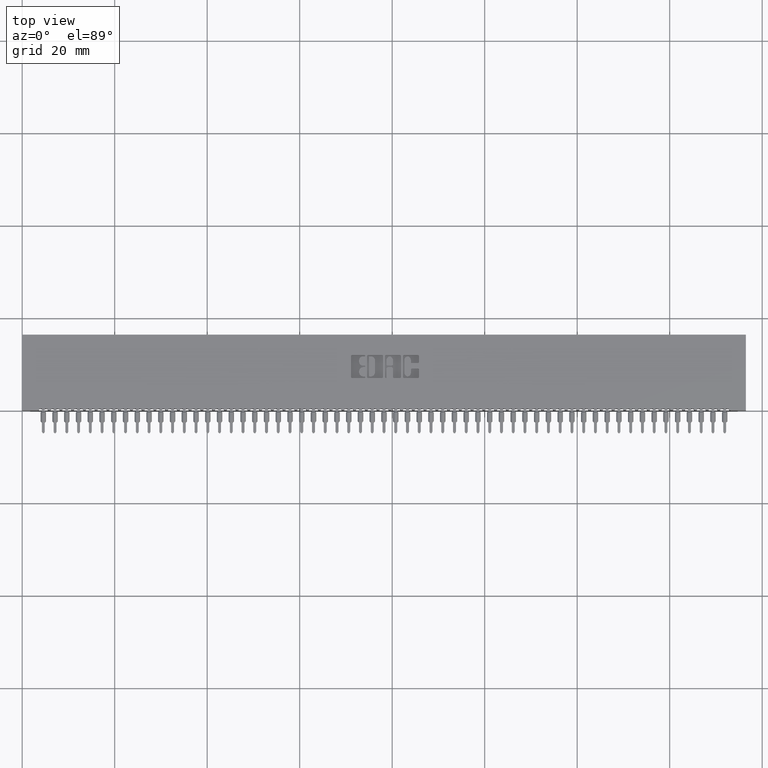
[diagram: clean part render]
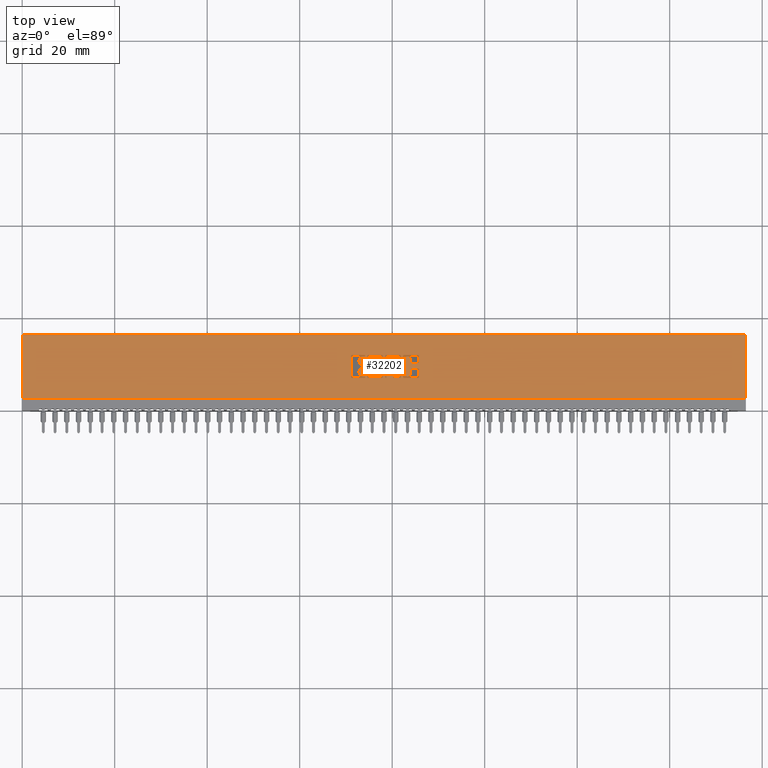
[diagram: same view with one face highlighted and labeled with its STEP entity id]
A machine part, top view. The second image highlights one B-rep face of the part: STEP entity #32202.
In plain terms, the highlighted planar face has unit normal (0, 0, -1).
Its self-contained STEP definition (entity closure, byte-faithful):
#117 = VERTEX_POINT ( 'NONE', #18625 ) ;
#318 = CARTESIAN_POINT ( 'NONE',  ( 0.0000000000000000000, 0.4706567020380511002, 0.0000000000000000000 ) ) ;
#373 = CARTESIAN_POINT ( 'NONE',  ( 3.376678631909971973, 0.0000000000000000000, 0.0000000000000000000 ) ) ;
#583 = DIRECTION ( 'NONE',  ( 1.000000000000000000, 0.0000000000000000000, 0.0000000000000000000 ) ) ;
#667 = DIRECTION ( 'NONE',  ( 1.000000000000000000, 0.0000000000000000000, 0.0000000000000000000 ) ) ;
#1055 = VECTOR ( 'NONE', #64948, 39.37007874015748143 ) ;
#1458 = AXIS2_PLACEMENT_3D ( 'NONE', #76432, #9188, #39145 ) ;
#1475 = VERTEX_POINT ( 'NONE', #10296 ) ;
#1487 = VERTEX_POINT ( 'NONE', #64759 ) ;
#1596 = VECTOR ( 'NONE', #11299, 39.37007874015748143 ) ;
#1693 = CIRCLE ( 'NONE', #51886, 0.03141014465221592805 ) ;
#1822 = VERTEX_POINT ( 'NONE', #93989 ) ;
#2293 = VERTEX_POINT ( 'NONE', #60321 ) ;
#2712 = ORIENTED_EDGE ( 'NONE', *, *, #3062, .F. ) ;
#2826 = CARTESIAN_POINT ( 'NONE',  ( 3.281221239177991578, 0.4306578459575296502, 0.0000000000000000000 ) ) ;
#2991 = CIRCLE ( 'NONE', #1458, 0.009815670203787768208 ) ;
#3062 = EDGE_CURVE ( 'NONE', #66429, #71373, #83611, .T. ) ;
#3135 = CARTESIAN_POINT ( 'NONE',  ( 3.366862961706134083, 0.2841589681657900046, 0.0000000000000000000 ) ) ;
#3400 = AXIS2_PLACEMENT_3D ( 'NONE', #64840, #94777, #93801 ) ;
#3462 = CARTESIAN_POINT ( 'NONE',  ( 0.0000000000000000000, 0.4706567020380327815, 0.0000000000000000000 ) ) ;
#3615 = ORIENTED_EDGE ( 'NONE', *, *, #49081, .F. ) ;
#3682 = EDGE_CURVE ( 'NONE', #51122, #65353, #55002, .T. ) ;
#3814 = CARTESIAN_POINT ( 'NONE',  ( 3.366862961706168278, 0.4706567020380511002, 0.0000000000000000000 ) ) ;
#3877 = CIRCLE ( 'NONE', #14818, 0.009815670203806891800 ) ;
#3944 = VECTOR ( 'NONE', #66401, 39.37007874015748143 ) ;
#4466 = EDGE_LOOP ( 'NONE', ( #75984, #83612, #93717, #7853, #85050, #37700, #41470, #24626, #75411, #26359, #83508, #20855, #22293, #81211, #86012, #5115, #90077, #59328, #6919, #56965 ) ) ;
#4827 = EDGE_CURVE ( 'NONE', #37604, #45171, #96807, .T. ) ;
#5078 = ORIENTED_EDGE ( 'NONE', *, *, #81878, .F. ) ;
#5115 = ORIENTED_EDGE ( 'NONE', *, *, #69731, .F. ) ;
#5160 = DIRECTION ( 'NONE',  ( 1.000000000000000000, 0.0000000000000000000, 0.0000000000000000000 ) ) ;
#5193 = ORIENTED_EDGE ( 'NONE', *, *, #12861, .F. ) ;
#5228 = EDGE_CURVE ( 'NONE', #17423, #47732, #74123, .T. ) ;
#5330 = VECTOR ( 'NONE', #6866, 39.37007874015748143 ) ;
#5519 = CIRCLE ( 'NONE', #17999, 0.03141014465217440571 ) ;
#5992 = VECTOR ( 'NONE', #21881, 39.37007874015748143 ) ;
#6131 = LINE ( 'NONE', #48024, #45384 ) ;
#6162 = DIRECTION ( 'NONE',  ( -0.0000000000000000000, 0.0000000000000000000, 1.000000000000000000 ) ) ;
#6198 = AXIS2_PLACEMENT_3D ( 'NONE', #28317, #82247, #37612 ) ;
#6467 = CARTESIAN_POINT ( 'NONE',  ( 2.913133606535335041, 0.2812142671046480302, 0.0000000000000000000 ) ) ;
#6470 = AXIS2_PLACEMENT_3D ( 'NONE', #57742, #63649, #79812 ) ;
#6513 = LINE ( 'NONE', #36484, #3944 ) ;
#6550 = EDGE_CURVE ( 'NONE', #68316, #1475, #44384, .T. ) ;
#6574 = AXIS2_PLACEMENT_3D ( 'NONE', #2826, #32776, #33758 ) ;
#6655 = CARTESIAN_POINT ( 'NONE',  ( 3.376678631909940442, 0.2841589681657830102, 0.0000000000000000000 ) ) ;
#6708 = DIRECTION ( 'NONE',  ( -1.000000000000000000, 0.0000000000000000000, 0.0000000000000000000 ) ) ;
#6801 = EDGE_CURVE ( 'NONE', #36717, #94022, #78978, .T. ) ;
#6866 = DIRECTION ( 'NONE',  ( -1.000000000000000000, -3.530861605407645268E-14, 0.0000000000000000000 ) ) ;
#6890 = EDGE_CURVE ( 'NONE', #45171, #41560, #19637, .T. ) ;
#6919 = ORIENTED_EDGE ( 'NONE', *, *, #44886, .F. ) ;
#7208 = LINE ( 'NONE', #318, #46180 ) ;
#7305 = CARTESIAN_POINT ( 'NONE',  ( 0.0000000000000000000, 0.6449999999999999067, 0.0000000000000000000 ) ) ;
#7584 = CARTESIAN_POINT ( 'NONE',  ( -0.0000000000000000000, 0.2743432979619832568, 0.0000000000000000000 ) ) ;
#7728 = CARTESIAN_POINT ( 'NONE',  ( 2.913133606535351028, 0.4569147637527357642, 0.0000000000000000000 ) ) ;
#7853 = ORIENTED_EDGE ( 'NONE', *, *, #82415, .F. ) ;
#7878 = EDGE_CURVE ( 'NONE', #35679, #62246, #7208, .T. ) ;
#7964 = VERTEX_POINT ( 'NONE', #52359 ) ;
#8167 = LINE ( 'NONE', #9130, #43204 ) ;
#8301 = LINE ( 'NONE', #15674, #76239 ) ;
#8319 = CARTESIAN_POINT ( 'NONE',  ( 2.899637060005083811, 0.3342188862052006271, 0.0000000000000000000 ) ) ;
#8671 = VECTOR ( 'NONE', #23623, 39.37007874015748143 ) ;
#8793 = CARTESIAN_POINT ( 'NONE',  ( 3.307478156973165717, 0.4112718973050452642, 0.0000000000000000000 ) ) ;
#9116 = CARTESIAN_POINT ( 'NONE',  ( 3.145028815100187725, 0.3656290308573498238, 0.0000000000000000000 ) ) ;
#9121 = EDGE_CURVE ( 'NONE', #2293, #67997, #8167, .T. ) ;
#9130 = CARTESIAN_POINT ( 'NONE',  ( 2.868226915352909412, 0.0000000000000000000, 0.0000000000000000000 ) ) ;
#9188 = DIRECTION ( 'NONE',  ( -0.0000000000000000000, 0.0000000000000000000, 1.000000000000000000 ) ) ;
#9636 = DIRECTION ( 'NONE',  ( -0.0000000000000000000, 0.0000000000000000000, 1.000000000000000000 ) ) ;
#9727 = VERTEX_POINT ( 'NONE', #23719 ) ;
#9791 = CARTESIAN_POINT ( 'NONE',  ( 2.868226915352909412, 0.4255046191005198430, 0.0000000000000000000 ) ) ;
#9797 = LINE ( 'NONE', #84891, #22128 ) ;
#9968 = CARTESIAN_POINT ( 'NONE',  ( 2.935955039759169161, 0.4608410318342101575, 0.0000000000000000000 ) ) ;
#10204 = EDGE_CURVE ( 'NONE', #93646, #78054, #76241, .T. ) ;
#10296 = CARTESIAN_POINT ( 'NONE',  ( 6.160000000000000142, 0.6449999999999999067, 0.0000000000000000000 ) ) ;
#10707 = CIRCLE ( 'NONE', #65621, 0.006870969142648706424 ) ;
#10725 = CARTESIAN_POINT ( 'NONE',  ( 2.913133606535309728, 0.3793709691426839226, 0.0000000000000000000 ) ) ;
#10742 = DIRECTION ( 'NONE',  ( -0.0000000000000000000, 0.0000000000000000000, 1.000000000000000000 ) ) ;
#10772 = AXIS2_PLACEMENT_3D ( 'NONE', #94026, #19922, #25327 ) ;
#10794 = CIRCLE ( 'NONE', #67227, 0.009815670203806891800 ) ;
#10805 = ORIENTED_EDGE ( 'NONE', *, *, #43648, .T. ) ;
#11013 = ORIENTED_EDGE ( 'NONE', *, *, #62140, .F. ) ;
#11045 = CARTESIAN_POINT ( 'NONE',  ( 3.071411288571669118, 0.4608410318342101575, 0.0000000000000000000 ) ) ;
#11299 = DIRECTION ( 'NONE',  ( -1.000000000000000000, 0.0000000000000000000, 0.0000000000000000000 ) ) ;
#11376 = CARTESIAN_POINT ( 'NONE',  ( 3.154844485303984758, 0.2841589681657878952, 0.0000000000000000000 ) ) ;
#11683 = DIRECTION ( 'NONE',  ( -0.0000000000000000000, 0.0000000000000000000, 1.000000000000000000 ) ) ;
#11771 = CARTESIAN_POINT ( 'NONE',  ( 2.945770709963009715, 0.4608410318342101575, 0.0000000000000000000 ) ) ;
#11859 = CARTESIAN_POINT ( 'NONE',  ( 2.945770709962975964, 0.2743432979619832568, 0.0000000000000000000 ) ) ;
#11966 = DIRECTION ( 'NONE',  ( -0.0000000000000000000, 0.0000000000000000000, 1.000000000000000000 ) ) ;
#11998 = CARTESIAN_POINT ( 'NONE',  ( 2.945770709963009715, 0.4706567020380511002, 0.0000000000000000000 ) ) ;
#12223 = CARTESIAN_POINT ( 'NONE',  ( 3.061595618367861871, 0.2743432979619832568, 0.0000000000000000000 ) ) ;
#12423 = CIRCLE ( 'NONE', #6198, 0.009815670203805252486 ) ;
#12622 = AXIS2_PLACEMENT_3D ( 'NONE', #6467, #81086, #13852 ) ;
#12690 = VECTOR ( 'NONE', #59306, 39.37007874015748143 ) ;
#12699 = CARTESIAN_POINT ( 'NONE',  ( 2.913133606535351028, 0.4637857328953863267, 0.0000000000000000000 ) ) ;
#12861 = EDGE_CURVE ( 'NONE', #42547, #66660, #8301, .T. ) ;
#13032 = AXIS2_PLACEMENT_3D ( 'NONE', #17437, #69970, #53776 ) ;
#13107 = CARTESIAN_POINT ( 'NONE',  ( 3.317293827176966747, 0.3538502266127576124, 0.0000000000000000000 ) ) ;
#13314 = ORIENTED_EDGE ( 'NONE', *, *, #10204, .F. ) ;
#13475 = DIRECTION ( 'NONE',  ( 1.000000000000000000, 0.0000000000000000000, 0.0000000000000000000 ) ) ;
#13639 = DIRECTION ( 'NONE',  ( 1.000000000000000000, 0.0000000000000000000, 0.0000000000000000000 ) ) ;
#13685 = VERTEX_POINT ( 'NONE', #89062 ) ;
#13691 = CARTESIAN_POINT ( 'NONE',  ( 6.160000000000000142, 0.1000000000000000056, 0.0000000000000000000 ) ) ;
#13852 = DIRECTION ( 'NONE',  ( 1.000000000000000000, 0.0000000000000000000, 0.0000000000000000000 ) ) ;
#13883 = DIRECTION ( 'NONE',  ( -0.0000000000000000000, 0.0000000000000000000, 1.000000000000000000 ) ) ;
#14020 = DIRECTION ( 'NONE',  ( -0.0000000000000000000, 0.0000000000000000000, 1.000000000000000000 ) ) ;
#14151 = CARTESIAN_POINT ( 'NONE',  ( 2.808842110619918397, 0.2743432979619850332, 0.0000000000000000000 ) ) ;
#14234 = DIRECTION ( 'NONE',  ( -1.000000000000000000, 0.0000000000000000000, 0.0000000000000000000 ) ) ;
#14818 = AXIS2_PLACEMENT_3D ( 'NONE', #36601, #14020, #79796 ) ;
#15012 = VECTOR ( 'NONE', #79927, 39.37007874015748143 ) ;
#15674 = CARTESIAN_POINT ( 'NONE',  ( 0.0000000000000000000, 0.3793709691426839226, 0.0000000000000000000 ) ) ;
#15748 = CARTESIAN_POINT ( 'NONE',  ( 3.088588711428330580, 0.4608410318342101575, 0.0000000000000000000 ) ) ;
#16012 = VECTOR ( 'NONE', #75822, 39.37007874015748143 ) ;
#16055 = DIRECTION ( 'NONE',  ( 1.000000000000000000, 0.0000000000000000000, 0.0000000000000000000 ) ) ;
#16372 = AXIS2_PLACEMENT_3D ( 'NONE', #56681, #80689, #13475 ) ;
#16387 = VECTOR ( 'NONE', #59411, 39.37007874015748143 ) ;
#16451 = CARTESIAN_POINT ( 'NONE',  ( 3.071411288571669118, 0.2841589681657900046, 0.0000000000000000000 ) ) ;
#16487 = AXIS2_PLACEMENT_3D ( 'NONE', #26149, #40401, #86501 ) ;
#16543 = LINE ( 'NONE', #81487, #16387 ) ;
#17423 = VERTEX_POINT ( 'NONE', #9116 ) ;
#17437 = CARTESIAN_POINT ( 'NONE',  ( 2.899637060005109568, 0.3194953808994904221, 0.0000000000000000000 ) ) ;
#17706 = ORIENTED_EDGE ( 'NONE', *, *, #61427, .F. ) ;
#17999 = AXIS2_PLACEMENT_3D ( 'NONE', #32721, #9636, #70030 ) ;
#18271 = VECTOR ( 'NONE', #79008, 39.37007874015748143 ) ;
#18596 = VERTEX_POINT ( 'NONE', #11045 ) ;
#18625 = CARTESIAN_POINT ( 'NONE',  ( 3.317293827176977405, 0.4014562271012336869, 0.0000000000000000000 ) ) ;
#18662 = EDGE_LOOP ( 'NONE', ( #32994, #83765, #92233, #64512, #53164, #13314, #43035, #74332, #29594, #56999, #60919, #45147, #94921, #33833 ) ) ;
#18936 = LINE ( 'NONE', #46931, #74650 ) ;
#18954 = CARTESIAN_POINT ( 'NONE',  ( 3.098404381632127169, 0.4608410318342101575, 0.0000000000000000000 ) ) ;
#19107 = CIRCLE ( 'NONE', #6574, 0.02625691779517394173 ) ;
#19205 = DIRECTION ( 'NONE',  ( -0.0000000000000000000, -1.000000000000000000, -0.0000000000000000000 ) ) ;
#19213 = DIRECTION ( 'NONE',  ( 0.0000000000000000000, -1.000000000000000000, 0.0000000000000000000 ) ) ;
#19267 = CIRCLE ( 'NONE', #49068, 0.009815670203806345362 ) ;
#19292 = VERTEX_POINT ( 'NONE', #75640 ) ;
#19364 = ORIENTED_EDGE ( 'NONE', *, *, #36810, .T. ) ;
#19376 = ORIENTED_EDGE ( 'NONE', *, *, #19813, .F. ) ;
#19422 = DIRECTION ( 'NONE',  ( -0.0000000000000000000, 0.0000000000000000000, 1.000000000000000000 ) ) ;
#19441 = DIRECTION ( 'NONE',  ( -0.0000000000000000000, 0.0000000000000000000, 1.000000000000000000 ) ) ;
#19637 = CIRCLE ( 'NONE', #74518, 0.006870969142663458512 ) ;
#19813 = EDGE_CURVE ( 'NONE', #41560, #42547, #80253, .T. ) ;
#19922 = DIRECTION ( 'NONE',  ( -0.0000000000000000000, 0.0000000000000000000, 1.000000000000000000 ) ) ;
#19938 = CARTESIAN_POINT ( 'NONE',  ( 2.913133606535335041, 0.2812142671046480302, 0.0000000000000000000 ) ) ;
#20855 = ORIENTED_EDGE ( 'NONE', *, *, #77170, .F. ) ;
#21237 = CARTESIAN_POINT ( 'NONE',  ( 2.808842110619921950, 0.2841589681657900046, 0.0000000000000000000 ) ) ;
#21307 = VECTOR ( 'NONE', #88770, 39.37007874015748143 ) ;
#21439 = AXIS2_PLACEMENT_3D ( 'NONE', #11771, #86382, #26516 ) ;
#21857 = DIRECTION ( 'NONE',  ( 1.000000000000000000, 0.0000000000000000000, 0.0000000000000000000 ) ) ;
#21881 = DIRECTION ( 'NONE',  ( 1.000000000000000000, 0.0000000000000000000, 0.0000000000000000000 ) ) ;
#22089 = ORIENTED_EDGE ( 'NONE', *, *, #3682, .F. ) ;
#22121 = VECTOR ( 'NONE', #51452, 39.37007874015748143 ) ;
#22128 = VECTOR ( 'NONE', #76101, 39.37007874015748143 ) ;
#22293 = ORIENTED_EDGE ( 'NONE', *, *, #90941, .F. ) ;
#22294 = CARTESIAN_POINT ( 'NONE',  ( 2.899637060005083811, 0.3656290308573568737, 0.0000000000000000000 ) ) ;
#22438 = DIRECTION ( 'NONE',  ( 1.000000000000000000, 0.0000000000000000000, 0.0000000000000000000 ) ) ;
#22533 = CARTESIAN_POINT ( 'NONE',  ( 2.913133606415388321, 0.3656290308573568737, 0.0000000000000000000 ) ) ;
#23329 = CIRCLE ( 'NONE', #10772, 0.009815670203795964777 ) ;
#23418 = EDGE_CURVE ( 'NONE', #57467, #44181, #68186, .T. ) ;
#23537 = DIRECTION ( 'NONE',  ( -0.0000000000000000000, 0.0000000000000000000, 1.000000000000000000 ) ) ;
#23623 = DIRECTION ( 'NONE',  ( -1.000000000000000000, 0.0000000000000000000, 0.0000000000000000000 ) ) ;
#23719 = CARTESIAN_POINT ( 'NONE',  ( 3.214229290037013520, 0.4706567020380066912, 0.0000000000000000000 ) ) ;
#24146 = ORIENTED_EDGE ( 'NONE', *, *, #71435, .F. ) ;
#24449 = CIRCLE ( 'NONE', #37040, 0.009815670203840221042 ) ;
#24585 = CARTESIAN_POINT ( 'NONE',  ( 2.913133606415414079, 0.2743432979619857548, 0.0000000000000000000 ) ) ;
#24626 = ORIENTED_EDGE ( 'NONE', *, *, #69711, .F. ) ;
#24842 = EDGE_CURVE ( 'NONE', #89966, #117, #83865, .T. ) ;
#24871 = FACE_BOUND ( 'NONE', #4466, .T. ) ;
#25033 = CARTESIAN_POINT ( 'NONE',  ( 2.899637060005125111, 0.4569147637527357642, 0.0000000000000000000 ) ) ;
#25327 = DIRECTION ( 'NONE',  ( 1.000000000000000000, 0.0000000000000000000, 0.0000000000000000000 ) ) ;
#25406 = VERTEX_POINT ( 'NONE', #46087 ) ;
#25473 = CARTESIAN_POINT ( 'NONE',  ( 3.366862961706153179, 0.3440345564089705155, 0.0000000000000000000 ) ) ;
#25574 = CIRCLE ( 'NONE', #77484, 0.009815670203787221770 ) ;
#25987 = EDGE_CURVE ( 'NONE', #63485, #63763, #18936, .T. ) ;
#26149 = CARTESIAN_POINT ( 'NONE',  ( 2.913133606535351028, 0.4637857328953863267, 0.0000000000000000000 ) ) ;
#26359 = ORIENTED_EDGE ( 'NONE', *, *, #32039, .F. ) ;
#26430 = DIRECTION ( 'NONE',  ( 1.000000000000000000, 0.0000000000000000000, 0.0000000000000000000 ) ) ;
#26516 = DIRECTION ( 'NONE',  ( 1.000000000000000000, 0.0000000000000000000, 0.0000000000000000000 ) ) ;
#26592 = EDGE_CURVE ( 'NONE', #93646, #37970, #41922, .T. ) ;
#27151 = EDGE_CURVE ( 'NONE', #76055, #36717, #76412, .T. ) ;
#27168 = DIRECTION ( 'NONE',  ( 0.0000000000000000000, -1.000000000000000000, 0.0000000000000000000 ) ) ;
#27489 = LINE ( 'NONE', #57436, #18271 ) ;
#27512 = CARTESIAN_POINT ( 'NONE',  ( 0.0000000000000000000, 0.4706567020380511002, 0.0000000000000000000 ) ) ;
#27998 = CARTESIAN_POINT ( 'NONE',  ( 3.112146319917449944, 0.3656290308573487136, 0.0000000000000000000 ) ) ;
#28317 = CARTESIAN_POINT ( 'NONE',  ( 3.366862961706166502, 0.4112718973050387139, 0.0000000000000000000 ) ) ;
#28522 = CARTESIAN_POINT ( 'NONE',  ( 3.251038053301265052, 0.2743432979619832568, 0.0000000000000000000 ) ) ;
#28623 = VERTEX_POINT ( 'NONE', #79940 ) ;
#28645 = EDGE_CURVE ( 'NONE', #94022, #51122, #10707, .T. ) ;
#28916 = VERTEX_POINT ( 'NONE', #47966 ) ;
#29352 = EDGE_CURVE ( 'NONE', #41637, #88157, #36831, .T. ) ;
#29384 = VERTEX_POINT ( 'NONE', #65308 ) ;
#29594 = ORIENTED_EDGE ( 'NONE', *, *, #5228, .T. ) ;
#29665 = CARTESIAN_POINT ( 'NONE',  ( 3.145028815100187725, 0.3558133606535528459, 0.0000000000000000000 ) ) ;
#29715 = VERTEX_POINT ( 'NONE', #77705 ) ;
#29739 = LINE ( 'NONE', #36632, #5992 ) ;
#29753 = VERTEX_POINT ( 'NONE', #94373 ) ;
#29829 = CARTESIAN_POINT ( 'NONE',  ( -0.0000000000000000000, 0.2743432979619832568, 0.0000000000000000000 ) ) ;
#29842 = LINE ( 'NONE', #373, #12690 ) ;
#30064 = CARTESIAN_POINT ( 'NONE',  ( 3.164660155507785788, 0.2743432979619847001, 0.0000000000000000000 ) ) ;
#30142 = AXIS2_PLACEMENT_3D ( 'NONE', #44678, #74616, #59880 ) ;
#30624 = EDGE_CURVE ( 'NONE', #29715, #9727, #38955, .T. ) ;
#30996 = EDGE_CURVE ( 'NONE', #28623, #73219, #23329, .T. ) ;
#31054 = ORIENTED_EDGE ( 'NONE', *, *, #86797, .F. ) ;
#31558 = VECTOR ( 'NONE', #95610, 39.37007874015748143 ) ;
#31752 = CARTESIAN_POINT ( 'NONE',  ( -0.0000000000000000000, 0.4569147637527357642, 0.0000000000000000000 ) ) ;
#32039 = EDGE_CURVE ( 'NONE', #81883, #50749, #35777, .T. ) ;
#32202 = ADVANCED_FACE ( 'NONE', ( #24871, #70031, #92578, #46484, #93062 ), #33705, .F. ) ;
#32297 = EDGE_CURVE ( 'NONE', #7964, #96330, #64092, .T. ) ;
#32339 = VECTOR ( 'NONE', #94304, 39.37007874015748143 ) ;
#32668 = VERTEX_POINT ( 'NONE', #41938 ) ;
#32721 = CARTESIAN_POINT ( 'NONE',  ( 2.899637060005083811, 0.4107811137948584324, 0.0000000000000000000 ) ) ;
#32776 = DIRECTION ( 'NONE',  ( -0.0000000000000000000, 0.0000000000000000000, 1.000000000000000000 ) ) ;
#32994 = ORIENTED_EDGE ( 'NONE', *, *, #36298, .T. ) ;
#33068 = LINE ( 'NONE', #63017, #53596 ) ;
#33146 = VERTEX_POINT ( 'NONE', #14151 ) ;
#33188 = CIRCLE ( 'NONE', #3400, 0.009815670203806891800 ) ;
#33272 = EDGE_CURVE ( 'NONE', #29715, #73219, #6131, .T. ) ;
#33627 = CARTESIAN_POINT ( 'NONE',  ( 3.254964321382818326, 0.3143421540424530258, 0.0000000000000000000 ) ) ;
#33705 = PLANE ( 'NONE',  #6470 ) ;
#33758 = DIRECTION ( 'NONE',  ( 1.000000000000000000, 0.0000000000000000000, 0.0000000000000000000 ) ) ;
#33801 = CARTESIAN_POINT ( 'NONE',  ( 3.214229290037011300, 0.4608410318342104350, 0.0000000000000000000 ) ) ;
#33833 = ORIENTED_EDGE ( 'NONE', *, *, #32297, .F. ) ;
#34069 = CARTESIAN_POINT ( 'NONE',  ( 3.154844485303984758, 0.0000000000000000000, 0.0000000000000000000 ) ) ;
#34230 = ORIENTED_EDGE ( 'NONE', *, *, #29352, .F. ) ;
#34450 = CARTESIAN_POINT ( 'NONE',  ( 2.868226915352927175, 0.0000000000000000000, 0.0000000000000000000 ) ) ;
#34784 = CARTESIAN_POINT ( 'NONE',  ( 3.376678631909940442, 0.0000000000000000000, 0.0000000000000000000 ) ) ;
#34856 = CIRCLE ( 'NONE', #30142, 0.009815670203803066735 ) ;
#35355 = AXIS2_PLACEMENT_3D ( 'NONE', #8319, #23537, #59892 ) ;
#35442 = CARTESIAN_POINT ( 'NONE',  ( 0.0000000000000000000, 0.6449999999999999067, 0.0000000000000000000 ) ) ;
#35600 = CARTESIAN_POINT ( 'NONE',  ( 3.254964321382818326, 0.4306578459575296502, 0.0000000000000000000 ) ) ;
#35604 = DIRECTION ( 'NONE',  ( 1.000000000000000000, 0.0000000000000000000, 0.0000000000000000000 ) ) ;
#35672 = ORIENTED_EDGE ( 'NONE', *, *, #27151, .F. ) ;
#35679 = VERTEX_POINT ( 'NONE', #71928 ) ;
#35777 = LINE ( 'NONE', #65697, #31558 ) ;
#35801 = DIRECTION ( 'NONE',  ( 1.000000000000000000, 0.0000000000000000000, 0.0000000000000000000 ) ) ;
#35999 = CIRCLE ( 'NONE', #61046, 0.006870969142662365636 ) ;
#36132 = CARTESIAN_POINT ( 'NONE',  ( 3.366862961706156288, 0.3538502266127576124, 0.0000000000000000000 ) ) ;
#36298 = EDGE_CURVE ( 'NONE', #7964, #9727, #58050, .T. ) ;
#36394 = DIRECTION ( 'NONE',  ( -0.0000000000000000000, 0.0000000000000000000, 1.000000000000000000 ) ) ;
#36484 = CARTESIAN_POINT ( 'NONE',  ( 3.307478156973165717, 0.0000000000000000000, 0.0000000000000000000 ) ) ;
#36601 = CARTESIAN_POINT ( 'NONE',  ( 2.945770709962975964, 0.2841589681657900046, 0.0000000000000000000 ) ) ;
#36632 = CARTESIAN_POINT ( 'NONE',  ( -0.0000000000000000000, 0.4014562271012336869, 0.0000000000000000000 ) ) ;
#36675 = ORIENTED_EDGE ( 'NONE', *, *, #82269, .F. ) ;
#36717 = VERTEX_POINT ( 'NONE', #7728 ) ;
#36810 = EDGE_CURVE ( 'NONE', #76055, #67997, #1693, .T. ) ;
#36817 = CARTESIAN_POINT ( 'NONE',  ( 2.913133606535309728, 0.3725000000000204259, 0.0000000000000000000 ) ) ;
#36831 = LINE ( 'NONE', #94738, #59435 ) ;
#37040 = AXIS2_PLACEMENT_3D ( 'NONE', #44341, #37471, #81618 ) ;
#37471 = DIRECTION ( 'NONE',  ( -0.0000000000000000000, 0.0000000000000000000, 1.000000000000000000 ) ) ;
#37604 = VERTEX_POINT ( 'NONE', #22294 ) ;
#37612 = DIRECTION ( 'NONE',  ( 1.000000000000000000, 0.0000000000000000000, 0.0000000000000000000 ) ) ;
#37700 = ORIENTED_EDGE ( 'NONE', *, *, #25987, .F. ) ;
#37862 = VERTEX_POINT ( 'NONE', #72762 ) ;
#37936 = ORIENTED_EDGE ( 'NONE', *, *, #28645, .F. ) ;
#37952 = AXIS2_PLACEMENT_3D ( 'NONE', #36817, #81452, #89772 ) ;
#37970 = VERTEX_POINT ( 'NONE', #45717 ) ;
#38513 = ORIENTED_EDGE ( 'NONE', *, *, #9121, .F. ) ;
#38955 = CIRCLE ( 'NONE', #56201, 0.009815670203795418339 ) ;
#39039 = DIRECTION ( 'NONE',  ( 1.000000000000000000, 0.0000000000000000000, 0.0000000000000000000 ) ) ;
#39145 = DIRECTION ( 'NONE',  ( 1.000000000000000000, 0.0000000000000000000, 0.0000000000000000000 ) ) ;
#39240 = DIRECTION ( 'NONE',  ( -0.0000000000000000000, 0.0000000000000000000, 1.000000000000000000 ) ) ;
#40029 = AXIS2_PLACEMENT_3D ( 'NONE', #86670, #19422, #5160 ) ;
#40050 = EDGE_CURVE ( 'NONE', #87555, #61394, #83285, .T. ) ;
#40079 = DIRECTION ( 'NONE',  ( 0.0000000000000000000, 1.000000000000000000, -0.0000000000000000000 ) ) ;
#40401 = DIRECTION ( 'NONE',  ( -0.0000000000000000000, 0.0000000000000000000, 1.000000000000000000 ) ) ;
#40706 = DIRECTION ( 'NONE',  ( 1.000000000000000000, 0.0000000000000000000, 0.0000000000000000000 ) ) ;
#40961 = EDGE_CURVE ( 'NONE', #37862, #81883, #25574, .T. ) ;
#41379 = VERTEX_POINT ( 'NONE', #49978 ) ;
#41470 = ORIENTED_EDGE ( 'NONE', *, *, #54357, .T. ) ;
#41560 = VERTEX_POINT ( 'NONE', #90525 ) ;
#41637 = VERTEX_POINT ( 'NONE', #9968 ) ;
#41822 = LINE ( 'NONE', #35442, #62118 ) ;
#41922 = LINE ( 'NONE', #34069, #1055 ) ;
#41938 = CARTESIAN_POINT ( 'NONE',  ( 0.0000000000000000000, 0.1000000000000000056, 0.0000000000000000000 ) ) ;
#42096 = CARTESIAN_POINT ( 'NONE',  ( 2.920004575677999981, 0.4637857328953863267, 0.0000000000000000000 ) ) ;
#42547 = VERTEX_POINT ( 'NONE', #10725 ) ;
#43035 = ORIENTED_EDGE ( 'NONE', *, *, #26592, .T. ) ;
#43135 = LINE ( 'NONE', #64724, #15012 ) ;
#43161 = VECTOR ( 'NONE', #27168, 39.37007874015748143 ) ;
#43204 = VECTOR ( 'NONE', #53794, 39.37007874015748143 ) ;
#43648 = EDGE_CURVE ( 'NONE', #37604, #89489, #94878, .T. ) ;
#44002 = EDGE_CURVE ( 'NONE', #1475, #28916, #43135, .T. ) ;
#44157 = AXIS2_PLACEMENT_3D ( 'NONE', #21237, #13883, #80138 ) ;
#44181 = VERTEX_POINT ( 'NONE', #91621 ) ;
#44341 = CARTESIAN_POINT ( 'NONE',  ( 3.366862961706131863, 0.4608410318342109901, 0.0000000000000000000 ) ) ;
#44384 = LINE ( 'NONE', #51755, #71289 ) ;
#44678 = CARTESIAN_POINT ( 'NONE',  ( 3.112146319917449944, 0.3558133606535456295, 0.0000000000000000000 ) ) ;
#44886 = EDGE_CURVE ( 'NONE', #29753, #92944, #24449, .T. ) ;
#44955 = VERTEX_POINT ( 'NONE', #67859 ) ;
#45000 = VECTOR ( 'NONE', #60090, 39.37007874015748143 ) ;
#45147 = ORIENTED_EDGE ( 'NONE', *, *, #23418, .F. ) ;
#45171 = VERTEX_POINT ( 'NONE', #22533 ) ;
#45384 = VECTOR ( 'NONE', #77946, 39.37007874015748143 ) ;
#45717 = CARTESIAN_POINT ( 'NONE',  ( 3.154844485303984758, 0.3558133606535435201, 0.0000000000000000000 ) ) ;
#45764 = AXIS2_PLACEMENT_3D ( 'NONE', #46117, #39240, #53477 ) ;
#45799 = EDGE_CURVE ( 'NONE', #37970, #17423, #87323, .T. ) ;
#45823 = ORIENTED_EDGE ( 'NONE', *, *, #76009, .F. ) ;
#46087 = CARTESIAN_POINT ( 'NONE',  ( 2.799026440416115147, 0.2841589681657900046, 0.0000000000000000000 ) ) ;
#46117 = CARTESIAN_POINT ( 'NONE',  ( 3.061595618367827676, 0.4608410318342100465, 0.0000000000000000000 ) ) ;
#46151 = ORIENTED_EDGE ( 'NONE', *, *, #65138, .F. ) ;
#46170 = EDGE_CURVE ( 'NONE', #19292, #94907, #58110, .T. ) ;
#46180 = VECTOR ( 'NONE', #6708, 39.37007874015748143 ) ;
#46398 = CARTESIAN_POINT ( 'NONE',  ( 2.808842110619937937, 0.4608410318342101575, 0.0000000000000000000 ) ) ;
#46484 = FACE_BOUND ( 'NONE', #75294, .T. ) ;
#46571 = DIRECTION ( 'NONE',  ( -0.0000000000000000000, 0.0000000000000000000, 1.000000000000000000 ) ) ;
#46931 = CARTESIAN_POINT ( 'NONE',  ( 3.254964321382818326, 0.0000000000000000000, 0.0000000000000000000 ) ) ;
#47302 = DIRECTION ( 'NONE',  ( 1.000000000000000000, 7.203446383881635636E-15, 0.0000000000000000000 ) ) ;
#47645 = EDGE_CURVE ( 'NONE', #92944, #44955, #94249, .T. ) ;
#47732 = VERTEX_POINT ( 'NONE', #27998 ) ;
#47738 = CARTESIAN_POINT ( 'NONE',  ( 2.913133606535309728, 0.3725000000000204259, 0.0000000000000000000 ) ) ;
#47966 = CARTESIAN_POINT ( 'NONE',  ( 6.160000000000000142, 0.1000000000000000056, 0.0000000000000000000 ) ) ;
#48024 = CARTESIAN_POINT ( 'NONE',  ( 3.224044960240806112, 0.0000000000000000000, 0.0000000000000000000 ) ) ;
#48166 = ORIENTED_EDGE ( 'NONE', *, *, #4827, .F. ) ;
#48880 = VERTEX_POINT ( 'NONE', #55638 ) ;
#49068 = AXIS2_PLACEMENT_3D ( 'NONE', #3135, #11966, #86091 ) ;
#49081 = EDGE_CURVE ( 'NONE', #25406, #33146, #66101, .T. ) ;
#49978 = CARTESIAN_POINT ( 'NONE',  ( 3.307478156973179040, 0.3440345564089687391, 0.0000000000000000000 ) ) ;
#50020 = AXIS2_PLACEMENT_3D ( 'NONE', #18954, #19441, #79334 ) ;
#50239 = CARTESIAN_POINT ( 'NONE',  ( 2.799026440416115147, 0.0000000000000000000, 0.0000000000000000000 ) ) ;
#50594 = DIRECTION ( 'NONE',  ( 0.0000000000000000000, -1.000000000000000000, 0.0000000000000000000 ) ) ;
#50749 = VERTEX_POINT ( 'NONE', #13107 ) ;
#50856 = EDGE_CURVE ( 'NONE', #1487, #48880, #77259, .T. ) ;
#51122 = VERTEX_POINT ( 'NONE', #89530 ) ;
#51351 = ORIENTED_EDGE ( 'NONE', *, *, #83917, .T. ) ;
#51423 = CARTESIAN_POINT ( 'NONE',  ( 3.241222383097458248, 0.2841589681657900046, 0.0000000000000000000 ) ) ;
#51452 = DIRECTION ( 'NONE',  ( 0.0000000000000000000, 1.000000000000000000, -0.0000000000000000000 ) ) ;
#51571 = ORIENTED_EDGE ( 'NONE', *, *, #44002, .F. ) ;
#51577 = CARTESIAN_POINT ( 'NONE',  ( -1.290985506876231629E-14, 0.3656290308572388015, 0.0000000000000000000 ) ) ;
#51733 = VERTEX_POINT ( 'NONE', #24585 ) ;
#51755 = CARTESIAN_POINT ( 'NONE',  ( 0.0000000000000000000, 0.6449999999999999067, 0.0000000000000000000 ) ) ;
#51886 = AXIS2_PLACEMENT_3D ( 'NONE', #84345, #46571, #83384 ) ;
#52151 = CARTESIAN_POINT ( 'NONE',  ( -0.0000000000000000000, 0.3656290308573568737, 0.0000000000000000000 ) ) ;
#52306 = LINE ( 'NONE', #82225, #16012 ) ;
#52359 = CARTESIAN_POINT ( 'NONE',  ( 3.098404381632127169, 0.4706567020380066912, 0.0000000000000000000 ) ) ;
#52921 = VECTOR ( 'NONE', #16055, 39.37007874015748143 ) ;
#53164 = ORIENTED_EDGE ( 'NONE', *, *, #95661, .T. ) ;
#53271 = CIRCLE ( 'NONE', #68959, 0.009815670203822736764 ) ;
#53477 = DIRECTION ( 'NONE',  ( 1.000000000000000000, 0.0000000000000000000, 0.0000000000000000000 ) ) ;
#53596 = VECTOR ( 'NONE', #47302, 39.37007874015748143 ) ;
#53776 = DIRECTION ( 'NONE',  ( 1.000000000000000000, 0.0000000000000000000, 0.0000000000000000000 ) ) ;
#53794 = DIRECTION ( 'NONE',  ( 0.0000000000000000000, 1.000000000000000000, -0.0000000000000000000 ) ) ;
#54357 = EDGE_CURVE ( 'NONE', #63485, #1822, #83772, .T. ) ;
#55002 = LINE ( 'NONE', #3462, #8671 ) ;
#55131 = CIRCLE ( 'NONE', #63004, 0.009815670203841313918 ) ;
#55638 = CARTESIAN_POINT ( 'NONE',  ( 2.899637060005109568, 0.2880852362473086403, 0.0000000000000000000 ) ) ;
#56201 = AXIS2_PLACEMENT_3D ( 'NONE', #33801, #11683, #26430 ) ;
#56347 = EDGE_CURVE ( 'NONE', #94907, #48880, #27489, .T. ) ;
#56362 = EDGE_CURVE ( 'NONE', #62246, #41637, #91893, .T. ) ;
#56681 = CARTESIAN_POINT ( 'NONE',  ( 3.281221239177998239, 0.3143421540424530258, 0.0000000000000000000 ) ) ;
#56821 = VERTEX_POINT ( 'NONE', #51423 ) ;
#56965 = ORIENTED_EDGE ( 'NONE', *, *, #65372, .F. ) ;
#56999 = ORIENTED_EDGE ( 'NONE', *, *, #89921, .T. ) ;
#57436 = CARTESIAN_POINT ( 'NONE',  ( -3.425805886172827097E-14, 0.2880852362469638606, 0.0000000000000000000 ) ) ;
#57467 = VERTEX_POINT ( 'NONE', #77863 ) ;
#57742 = CARTESIAN_POINT ( 'NONE',  ( 0.0000000000000000000, 0.6449999999999999067, 0.0000000000000000000 ) ) ;
#57869 = CARTESIAN_POINT ( 'NONE',  ( 3.366862961706134083, 0.2743432979619832568, 0.0000000000000000000 ) ) ;
#58050 = LINE ( 'NONE', #59967, #78413 ) ;
#58110 = CIRCLE ( 'NONE', #12622, 0.006870969142662365636 ) ;
#58256 = ORIENTED_EDGE ( 'NONE', *, *, #50856, .T. ) ;
#58611 = VECTOR ( 'NONE', #22438, 39.37007874015748143 ) ;
#58753 = EDGE_CURVE ( 'NONE', #117, #64204, #29739, .T. ) ;
#59306 = DIRECTION ( 'NONE',  ( 0.0000000000000000000, 1.000000000000000000, -0.0000000000000000000 ) ) ;
#59328 = ORIENTED_EDGE ( 'NONE', *, *, #47645, .F. ) ;
#59411 = DIRECTION ( 'NONE',  ( 0.0000000000000000000, -1.000000000000000000, 0.0000000000000000000 ) ) ;
#59435 = VECTOR ( 'NONE', #89321, 39.37007874015748143 ) ;
#59880 = DIRECTION ( 'NONE',  ( 1.000000000000000000, 0.0000000000000000000, 0.0000000000000000000 ) ) ;
#59892 = DIRECTION ( 'NONE',  ( 1.000000000000000000, 0.0000000000000000000, 0.0000000000000000000 ) ) ;
#59967 = CARTESIAN_POINT ( 'NONE',  ( -0.0000000000000000000, 0.4706567020380066912, 0.0000000000000000000 ) ) ;
#60090 = DIRECTION ( 'NONE',  ( 1.000000000000000000, 0.0000000000000000000, 0.0000000000000000000 ) ) ;
#60250 = CARTESIAN_POINT ( 'NONE',  ( 2.808842110619937937, 0.4706567020380327815, 0.0000000000000000000 ) ) ;
#60321 = CARTESIAN_POINT ( 'NONE',  ( 2.868226915352909412, 0.4107811137948584324, 0.0000000000000000000 ) ) ;
#60919 = ORIENTED_EDGE ( 'NONE', *, *, #92644, .T. ) ;
#61046 = AXIS2_PLACEMENT_3D ( 'NONE', #19938, #6162, #21857 ) ;
#61394 = VERTEX_POINT ( 'NONE', #57869 ) ;
#61427 = EDGE_CURVE ( 'NONE', #71373, #67137, #10794, .T. ) ;
#61999 = EDGE_CURVE ( 'NONE', #64204, #71911, #12423, .T. ) ;
#62118 = VECTOR ( 'NONE', #19205, 39.37007874015748143 ) ;
#62140 = EDGE_CURVE ( 'NONE', #65353, #29384, #53271, .T. ) ;
#62194 = ORIENTED_EDGE ( 'NONE', *, *, #6890, .F. ) ;
#62198 = ORIENTED_EDGE ( 'NONE', *, *, #83946, .F. ) ;
#62246 = VERTEX_POINT ( 'NONE', #11998 ) ;
#63004 = AXIS2_PLACEMENT_3D ( 'NONE', #78607, #36394, #81515 ) ;
#63017 = CARTESIAN_POINT ( 'NONE',  ( -1.976217237646277391E-15, 0.2743432979619647716, 0.0000000000000000000 ) ) ;
#63287 = CARTESIAN_POINT ( 'NONE',  ( 3.061595618367861871, 0.2841589681657900046, 0.0000000000000000000 ) ) ;
#63485 = VERTEX_POINT ( 'NONE', #33627 ) ;
#63585 = LINE ( 'NONE', #85149, #88709 ) ;
#63649 = DIRECTION ( 'NONE',  ( 0.0000000000000000000, 0.0000000000000000000, -1.000000000000000000 ) ) ;
#63763 = VERTEX_POINT ( 'NONE', #35600 ) ;
#64092 = CIRCLE ( 'NONE', #50020, 0.009815670203796511215 ) ;
#64204 = VERTEX_POINT ( 'NONE', #81075 ) ;
#64512 = ORIENTED_EDGE ( 'NONE', *, *, #30996, .F. ) ;
#64724 = CARTESIAN_POINT ( 'NONE',  ( 6.160000000000000142, 0.6449999999999999067, 0.0000000000000000000 ) ) ;
#64759 = CARTESIAN_POINT ( 'NONE',  ( 2.868226915352927175, 0.3194953808994904221, 0.0000000000000000000 ) ) ;
#64840 = CARTESIAN_POINT ( 'NONE',  ( 3.251038053301265052, 0.2841589681657900046, 0.0000000000000000000 ) ) ;
#64948 = DIRECTION ( 'NONE',  ( 0.0000000000000000000, 1.000000000000000000, -0.0000000000000000000 ) ) ;
#65138 = EDGE_CURVE ( 'NONE', #18596, #35679, #88095, .T. ) ;
#65162 = DIRECTION ( 'NONE',  ( -0.0000000000000000000, 0.0000000000000000000, 1.000000000000000000 ) ) ;
#65210 = ORIENTED_EDGE ( 'NONE', *, *, #6550, .F. ) ;
#65308 = CARTESIAN_POINT ( 'NONE',  ( 2.799026440416115147, 0.4608410318342101575, 0.0000000000000000000 ) ) ;
#65353 = VERTEX_POINT ( 'NONE', #60250 ) ;
#65372 = EDGE_CURVE ( 'NONE', #71911, #29753, #29842, .T. ) ;
#65621 = AXIS2_PLACEMENT_3D ( 'NONE', #12699, #78967, #35801 ) ;
#65697 = CARTESIAN_POINT ( 'NONE',  ( 0.0000000000000000000, 0.3538502266127576124, 0.0000000000000000000 ) ) ;
#66101 = CIRCLE ( 'NONE', #44157, 0.009815670203805798924 ) ;
#66401 = DIRECTION ( 'NONE',  ( 0.0000000000000000000, -1.000000000000000000, 0.0000000000000000000 ) ) ;
#66429 = VERTEX_POINT ( 'NONE', #11859 ) ;
#66545 = EDGE_CURVE ( 'NONE', #44955, #13685, #55131, .T. ) ;
#66660 = VERTEX_POINT ( 'NONE', #73681 ) ;
#67137 = VERTEX_POINT ( 'NONE', #16451 ) ;
#67227 = AXIS2_PLACEMENT_3D ( 'NONE', #63287, #93205, #93706 ) ;
#67859 = CARTESIAN_POINT ( 'NONE',  ( 3.251038053301299247, 0.4706567020380511002, 0.0000000000000000000 ) ) ;
#67910 = DIRECTION ( 'NONE',  ( -0.0000000000000000000, 0.0000000000000000000, 1.000000000000000000 ) ) ;
#67997 = VERTEX_POINT ( 'NONE', #9791 ) ;
#68068 = LINE ( 'NONE', #13691, #21307 ) ;
#68186 = CIRCLE ( 'NONE', #82347, 0.006870969142657995000 ) ;
#68316 = VERTEX_POINT ( 'NONE', #7305 ) ;
#68959 = AXIS2_PLACEMENT_3D ( 'NONE', #46398, #69434, #39039 ) ;
#69434 = DIRECTION ( 'NONE',  ( -0.0000000000000000000, 0.0000000000000000000, 1.000000000000000000 ) ) ;
#69480 = VECTOR ( 'NONE', #583, 39.37007874015748143 ) ;
#69711 = EDGE_CURVE ( 'NONE', #41379, #1822, #91612, .T. ) ;
#69731 = EDGE_CURVE ( 'NONE', #13685, #56821, #16543, .T. ) ;
#69811 = ORIENTED_EDGE ( 'NONE', *, *, #46170, .F. ) ;
#69963 = EDGE_CURVE ( 'NONE', #2293, #66660, #5519, .T. ) ;
#69970 = DIRECTION ( 'NONE',  ( -0.0000000000000000000, 0.0000000000000000000, 1.000000000000000000 ) ) ;
#70030 = DIRECTION ( 'NONE',  ( 1.000000000000000000, 0.0000000000000000000, 0.0000000000000000000 ) ) ;
#70031 = FACE_BOUND ( 'NONE', #89648, .T. ) ;
#70770 = CARTESIAN_POINT ( 'NONE',  ( 3.102330649713646693, 0.0000000000000000000, 0.0000000000000000000 ) ) ;
#70807 = DIRECTION ( 'NONE',  ( -0.0000000000000000000, 0.0000000000000000000, 1.000000000000000000 ) ) ;
#71028 = CARTESIAN_POINT ( 'NONE',  ( 3.307478156973165717, 0.4306578454992600058, 0.0000000000000000000 ) ) ;
#71289 = VECTOR ( 'NONE', #35604, 39.37007874015748143 ) ;
#71373 = VERTEX_POINT ( 'NONE', #12223 ) ;
#71435 = EDGE_CURVE ( 'NONE', #28916, #32668, #68068, .T. ) ;
#71749 = LINE ( 'NONE', #34450, #32339 ) ;
#71787 = CARTESIAN_POINT ( 'NONE',  ( 2.913133606415414079, 0.2880852362473102501, 0.0000000000000000000 ) ) ;
#71911 = VERTEX_POINT ( 'NONE', #74269 ) ;
#71928 = CARTESIAN_POINT ( 'NONE',  ( 3.061595618367896066, 0.4706567020380511002, 0.0000000000000000000 ) ) ;
#71993 = CARTESIAN_POINT ( 'NONE',  ( 3.102330649713646693, 0.3558133606535456295, 0.0000000000000000000 ) ) ;
#72583 = VECTOR ( 'NONE', #19213, 39.37007874015748143 ) ;
#72762 = CARTESIAN_POINT ( 'NONE',  ( 3.376678631909940442, 0.3440345564089705155, 0.0000000000000000000 ) ) ;
#73219 = VERTEX_POINT ( 'NONE', #86818 ) ;
#73496 = DIRECTION ( 'NONE',  ( -0.0000000000000000000, 0.0000000000000000000, 1.000000000000000000 ) ) ;
#73633 = EDGE_CURVE ( 'NONE', #50749, #41379, #2991, .T. ) ;
#73681 = CARTESIAN_POINT ( 'NONE',  ( 2.899637060005083811, 0.3793709691426839226, 0.0000000000000000000 ) ) ;
#73732 = VERTEX_POINT ( 'NONE', #71993 ) ;
#74123 = LINE ( 'NONE', #51577, #5330 ) ;
#74269 = CARTESIAN_POINT ( 'NONE',  ( 3.376678631909971973, 0.4112718973050387139, 0.0000000000000000000 ) ) ;
#74332 = ORIENTED_EDGE ( 'NONE', *, *, #45799, .T. ) ;
#74518 = AXIS2_PLACEMENT_3D ( 'NONE', #47738, #70807, #78157 ) ;
#74616 = DIRECTION ( 'NONE',  ( -0.0000000000000000000, 0.0000000000000000000, 1.000000000000000000 ) ) ;
#74650 = VECTOR ( 'NONE', #40079, 39.37007874015748143 ) ;
#74793 = VERTEX_POINT ( 'NONE', #71028 ) ;
#75294 = EDGE_LOOP ( 'NONE', ( #46151, #45823, #17706, #2712, #5078, #34230, #87760, #81786 ) ) ;
#75411 = ORIENTED_EDGE ( 'NONE', *, *, #73633, .F. ) ;
#75640 = CARTESIAN_POINT ( 'NONE',  ( 2.920004575677997760, 0.2812142671046480302, 0.0000000000000000000 ) ) ;
#75822 = DIRECTION ( 'NONE',  ( 0.0000000000000000000, 1.000000000000000000, -0.0000000000000000000 ) ) ;
#75984 = ORIENTED_EDGE ( 'NONE', *, *, #61999, .F. ) ;
#76009 = EDGE_CURVE ( 'NONE', #67137, #18596, #9797, .T. ) ;
#76055 = VERTEX_POINT ( 'NONE', #25033 ) ;
#76101 = DIRECTION ( 'NONE',  ( 0.0000000000000000000, 1.000000000000000000, -0.0000000000000000000 ) ) ;
#76239 = VECTOR ( 'NONE', #14234, 39.37007874015748143 ) ;
#76241 = CIRCLE ( 'NONE', #88804, 0.009815670203803066735 ) ;
#76412 = LINE ( 'NONE', #31752, #52921 ) ;
#76432 = CARTESIAN_POINT ( 'NONE',  ( 3.317293827176966747, 0.3440345564089696273, 0.0000000000000000000 ) ) ;
#76615 = EDGE_CURVE ( 'NONE', #74793, #63763, #19107, .T. ) ;
#77146 = LINE ( 'NONE', #70770, #72583 ) ;
#77170 = EDGE_CURVE ( 'NONE', #78923, #37862, #88240, .T. ) ;
#77259 = CIRCLE ( 'NONE', #13032, 0.03141014465218205237 ) ;
#77484 = AXIS2_PLACEMENT_3D ( 'NONE', #25473, #10742, #40706 ) ;
#77540 = VECTOR ( 'NONE', #50594, 39.37007874015748143 ) ;
#77705 = CARTESIAN_POINT ( 'NONE',  ( 3.224044960240806112, 0.4608410318342010537, 0.0000000000000000000 ) ) ;
#77863 = CARTESIAN_POINT ( 'NONE',  ( 3.088588711428330580, 0.2812142671046480302, 0.0000000000000000000 ) ) ;
#77946 = DIRECTION ( 'NONE',  ( 0.0000000000000000000, -1.000000000000000000, 0.0000000000000000000 ) ) ;
#78054 = VERTEX_POINT ( 'NONE', #30064 ) ;
#78157 = DIRECTION ( 'NONE',  ( 1.000000000000000000, 0.0000000000000000000, 0.0000000000000000000 ) ) ;
#78413 = VECTOR ( 'NONE', #89419, 39.37007874015748143 ) ;
#78457 = EDGE_CURVE ( 'NONE', #56821, #87555, #33188, .T. ) ;
#78607 = CARTESIAN_POINT ( 'NONE',  ( 3.251038053301299247, 0.4608410318342101575, 0.0000000000000000000 ) ) ;
#78923 = VERTEX_POINT ( 'NONE', #6655 ) ;
#78967 = DIRECTION ( 'NONE',  ( -0.0000000000000000000, 0.0000000000000000000, 1.000000000000000000 ) ) ;
#78978 = CIRCLE ( 'NONE', #16487, 0.006870969142648706424 ) ;
#79008 = DIRECTION ( 'NONE',  ( -1.000000000000000000, -1.189163988687022540E-13, 0.0000000000000000000 ) ) ;
#79032 = EDGE_CURVE ( 'NONE', #57467, #96330, #52306, .T. ) ;
#79334 = DIRECTION ( 'NONE',  ( 1.000000000000000000, 0.0000000000000000000, 0.0000000000000000000 ) ) ;
#79461 = AXIS2_PLACEMENT_3D ( 'NONE', #29665, #67910, #667 ) ;
#79796 = DIRECTION ( 'NONE',  ( 1.000000000000000000, 0.0000000000000000000, 0.0000000000000000000 ) ) ;
#79812 = DIRECTION ( 'NONE',  ( -1.000000000000000000, 0.0000000000000000000, -0.0000000000000000000 ) ) ;
#79875 = DIRECTION ( 'NONE',  ( 1.000000000000000000, 0.0000000000000000000, 0.0000000000000000000 ) ) ;
#79927 = DIRECTION ( 'NONE',  ( -0.0000000000000000000, -1.000000000000000000, -0.0000000000000000000 ) ) ;
#79940 = CARTESIAN_POINT ( 'NONE',  ( 3.214229290037010411, 0.2743432979619847001, 0.0000000000000000000 ) ) ;
#80138 = DIRECTION ( 'NONE',  ( 1.000000000000000000, 0.0000000000000000000, 0.0000000000000000000 ) ) ;
#80253 = CIRCLE ( 'NONE', #37952, 0.006870969142663458512 ) ;
#80509 = CARTESIAN_POINT ( 'NONE',  ( 3.307478156973179040, 0.0000000000000000000, 0.0000000000000000000 ) ) ;
#80689 = DIRECTION ( 'NONE',  ( -0.0000000000000000000, 0.0000000000000000000, 1.000000000000000000 ) ) ;
#81075 = CARTESIAN_POINT ( 'NONE',  ( 3.366862961706166502, 0.4014562271012335204, 0.0000000000000000000 ) ) ;
#81086 = DIRECTION ( 'NONE',  ( -0.0000000000000000000, 0.0000000000000000000, 1.000000000000000000 ) ) ;
#81211 = ORIENTED_EDGE ( 'NONE', *, *, #40050, .F. ) ;
#81452 = DIRECTION ( 'NONE',  ( -0.0000000000000000000, 0.0000000000000000000, 1.000000000000000000 ) ) ;
#81487 = CARTESIAN_POINT ( 'NONE',  ( 3.241222383097458248, 0.0000000000000000000, 0.0000000000000000000 ) ) ;
#81515 = DIRECTION ( 'NONE',  ( 1.000000000000000000, 0.0000000000000000000, 0.0000000000000000000 ) ) ;
#81618 = DIRECTION ( 'NONE',  ( 1.000000000000000000, 0.0000000000000000000, 0.0000000000000000000 ) ) ;
#81786 = ORIENTED_EDGE ( 'NONE', *, *, #7878, .F. ) ;
#81878 = EDGE_CURVE ( 'NONE', #88157, #66429, #3877, .T. ) ;
#81883 = VERTEX_POINT ( 'NONE', #36132 ) ;
#82225 = CARTESIAN_POINT ( 'NONE',  ( 3.088588711428330580, 0.0000000000000000000, 0.0000000000000000000 ) ) ;
#82247 = DIRECTION ( 'NONE',  ( -0.0000000000000000000, 0.0000000000000000000, 1.000000000000000000 ) ) ;
#82269 = EDGE_CURVE ( 'NONE', #29384, #25406, #95848, .T. ) ;
#82347 = AXIS2_PLACEMENT_3D ( 'NONE', #95103, #73496, #13639 ) ;
#82415 = EDGE_CURVE ( 'NONE', #74793, #89966, #6513, .T. ) ;
#82832 = CARTESIAN_POINT ( 'NONE',  ( 2.935955039759169161, 0.2841589681657900046, 0.0000000000000000000 ) ) ;
#83285 = LINE ( 'NONE', #29829, #58611 ) ;
#83384 = DIRECTION ( 'NONE',  ( 1.000000000000000000, 0.0000000000000000000, 0.0000000000000000000 ) ) ;
#83508 = ORIENTED_EDGE ( 'NONE', *, *, #40961, .F. ) ;
#83611 = LINE ( 'NONE', #7584, #45000 ) ;
#83612 = ORIENTED_EDGE ( 'NONE', *, *, #58753, .F. ) ;
#83765 = ORIENTED_EDGE ( 'NONE', *, *, #30624, .F. ) ;
#83772 = CIRCLE ( 'NONE', #16372, 0.02625691779518049898 ) ;
#83865 = CIRCLE ( 'NONE', #40029, 0.009815670203811809741 ) ;
#83917 = EDGE_CURVE ( 'NONE', #68316, #32668, #41822, .T. ) ;
#83946 = EDGE_CURVE ( 'NONE', #1487, #89489, #71749, .T. ) ;
#84345 = CARTESIAN_POINT ( 'NONE',  ( 2.899637060005125111, 0.4255046191005198430, 0.0000000000000000000 ) ) ;
#84891 = CARTESIAN_POINT ( 'NONE',  ( 3.071411288571669118, 0.0000000000000000000, 0.0000000000000000000 ) ) ;
#85050 = ORIENTED_EDGE ( 'NONE', *, *, #76615, .T. ) ;
#85149 = CARTESIAN_POINT ( 'NONE',  ( 0.0000000000000000000, 0.2743432979619847001, 0.0000000000000000000 ) ) ;
#85833 = EDGE_LOOP ( 'NONE', ( #51351, #24146, #51571, #65210 ) ) ;
#86012 = ORIENTED_EDGE ( 'NONE', *, *, #78457, .F. ) ;
#86091 = DIRECTION ( 'NONE',  ( 1.000000000000000000, 0.0000000000000000000, 0.0000000000000000000 ) ) ;
#86382 = DIRECTION ( 'NONE',  ( -0.0000000000000000000, 0.0000000000000000000, 1.000000000000000000 ) ) ;
#86501 = DIRECTION ( 'NONE',  ( 1.000000000000000000, 0.0000000000000000000, 0.0000000000000000000 ) ) ;
#86670 = CARTESIAN_POINT ( 'NONE',  ( 3.317293827176977405, 0.4112718973050452642, 0.0000000000000000000 ) ) ;
#86797 = EDGE_CURVE ( 'NONE', #51733, #19292, #35999, .T. ) ;
#86818 = CARTESIAN_POINT ( 'NONE',  ( 3.224044960240806112, 0.2841589681657809008, 0.0000000000000000000 ) ) ;
#87166 = CARTESIAN_POINT ( 'NONE',  ( 2.868226915352927175, 0.3342188862052006271, 0.0000000000000000000 ) ) ;
#87323 = CIRCLE ( 'NONE', #79461, 0.009815670203797057652 ) ;
#87555 = VERTEX_POINT ( 'NONE', #28522 ) ;
#87760 = ORIENTED_EDGE ( 'NONE', *, *, #56362, .F. ) ;
#88095 = CIRCLE ( 'NONE', #45764, 0.009815670203841313918 ) ;
#88157 = VERTEX_POINT ( 'NONE', #82832 ) ;
#88240 = LINE ( 'NONE', #34784, #22121 ) ;
#88709 = VECTOR ( 'NONE', #92512, 39.37007874015748143 ) ;
#88770 = DIRECTION ( 'NONE',  ( -1.000000000000000000, -0.0000000000000000000, -0.0000000000000000000 ) ) ;
#88804 = AXIS2_PLACEMENT_3D ( 'NONE', #96048, #65162, #79875 ) ;
#89062 = CARTESIAN_POINT ( 'NONE',  ( 3.241222383097458248, 0.4608410318342101575, 0.0000000000000000000 ) ) ;
#89321 = DIRECTION ( 'NONE',  ( 0.0000000000000000000, -1.000000000000000000, 0.0000000000000000000 ) ) ;
#89419 = DIRECTION ( 'NONE',  ( 1.000000000000000000, 0.0000000000000000000, 0.0000000000000000000 ) ) ;
#89447 = ORIENTED_EDGE ( 'NONE', *, *, #69963, .T. ) ;
#89489 = VERTEX_POINT ( 'NONE', #87166 ) ;
#89530 = CARTESIAN_POINT ( 'NONE',  ( 2.913133606535351028, 0.4706567020380327815, 0.0000000000000000000 ) ) ;
#89539 = ORIENTED_EDGE ( 'NONE', *, *, #6801, .F. ) ;
#89648 = EDGE_LOOP ( 'NONE', ( #19364, #38513, #89447, #5193, #19376, #62194, #48166, #10805, #62198, #58256, #96694, #69811, #31054, #90059, #3615, #36675, #11013, #22089, #37936, #89539, #35672 ) ) ;
#89709 = EDGE_CURVE ( 'NONE', #33146, #51733, #33068, .T. ) ;
#89772 = DIRECTION ( 'NONE',  ( 1.000000000000000000, 0.0000000000000000000, 0.0000000000000000000 ) ) ;
#89921 = EDGE_CURVE ( 'NONE', #47732, #73732, #34856, .T. ) ;
#89966 = VERTEX_POINT ( 'NONE', #8793 ) ;
#90059 = ORIENTED_EDGE ( 'NONE', *, *, #89709, .F. ) ;
#90077 = ORIENTED_EDGE ( 'NONE', *, *, #66545, .F. ) ;
#90525 = CARTESIAN_POINT ( 'NONE',  ( 2.920004575677972891, 0.3725000000000204259, 0.0000000000000000000 ) ) ;
#90941 = EDGE_CURVE ( 'NONE', #61394, #78923, #19267, .T. ) ;
#91612 = LINE ( 'NONE', #80509, #77540 ) ;
#91621 = CARTESIAN_POINT ( 'NONE',  ( 3.102330649713646693, 0.2812142671046480302, 0.0000000000000000000 ) ) ;
#91893 = CIRCLE ( 'NONE', #21439, 0.009815670203840767480 ) ;
#92233 = ORIENTED_EDGE ( 'NONE', *, *, #33272, .T. ) ;
#92512 = DIRECTION ( 'NONE',  ( -1.000000000000000000, 0.0000000000000000000, 0.0000000000000000000 ) ) ;
#92578 = FACE_OUTER_BOUND ( 'NONE', #85833, .T. ) ;
#92644 = EDGE_CURVE ( 'NONE', #73732, #44181, #77146, .T. ) ;
#92944 = VERTEX_POINT ( 'NONE', #3814 ) ;
#93062 = FACE_BOUND ( 'NONE', #18662, .T. ) ;
#93205 = DIRECTION ( 'NONE',  ( -0.0000000000000000000, 0.0000000000000000000, 1.000000000000000000 ) ) ;
#93646 = VERTEX_POINT ( 'NONE', #11376 ) ;
#93706 = DIRECTION ( 'NONE',  ( 1.000000000000000000, 0.0000000000000000000, 0.0000000000000000000 ) ) ;
#93717 = ORIENTED_EDGE ( 'NONE', *, *, #24842, .F. ) ;
#93801 = DIRECTION ( 'NONE',  ( 1.000000000000000000, 0.0000000000000000000, 0.0000000000000000000 ) ) ;
#93989 = CARTESIAN_POINT ( 'NONE',  ( 3.307478156973179040, 0.3143421540424530258, 0.0000000000000000000 ) ) ;
#94022 = VERTEX_POINT ( 'NONE', #42096 ) ;
#94026 = CARTESIAN_POINT ( 'NONE',  ( 3.214229290037010411, 0.2841589681657809008, 0.0000000000000000000 ) ) ;
#94249 = LINE ( 'NONE', #27512, #1596 ) ;
#94304 = DIRECTION ( 'NONE',  ( 0.0000000000000000000, 1.000000000000000000, -0.0000000000000000000 ) ) ;
#94373 = CARTESIAN_POINT ( 'NONE',  ( 3.376678631909971973, 0.4608410318341948919, 0.0000000000000000000 ) ) ;
#94738 = CARTESIAN_POINT ( 'NONE',  ( 2.935955039759169161, 0.0000000000000000000, 0.0000000000000000000 ) ) ;
#94777 = DIRECTION ( 'NONE',  ( -0.0000000000000000000, 0.0000000000000000000, 1.000000000000000000 ) ) ;
#94878 = CIRCLE ( 'NONE', #35355, 0.03141014465215637153 ) ;
#94907 = VERTEX_POINT ( 'NONE', #71787 ) ;
#94921 = ORIENTED_EDGE ( 'NONE', *, *, #79032, .T. ) ;
#95103 = CARTESIAN_POINT ( 'NONE',  ( 3.095459680570987082, 0.2812142671046480302, 0.0000000000000000000 ) ) ;
#95610 = DIRECTION ( 'NONE',  ( -1.000000000000000000, 0.0000000000000000000, 0.0000000000000000000 ) ) ;
#95661 = EDGE_CURVE ( 'NONE', #28623, #78054, #63585, .T. ) ;
#95848 = LINE ( 'NONE', #50239, #43161 ) ;
#96048 = CARTESIAN_POINT ( 'NONE',  ( 3.164660155507788009, 0.2841589681657878952, 0.0000000000000000000 ) ) ;
#96330 = VERTEX_POINT ( 'NONE', #15748 ) ;
#96694 = ORIENTED_EDGE ( 'NONE', *, *, #56347, .F. ) ;
#96807 = LINE ( 'NONE', #52151, #69480 ) ;